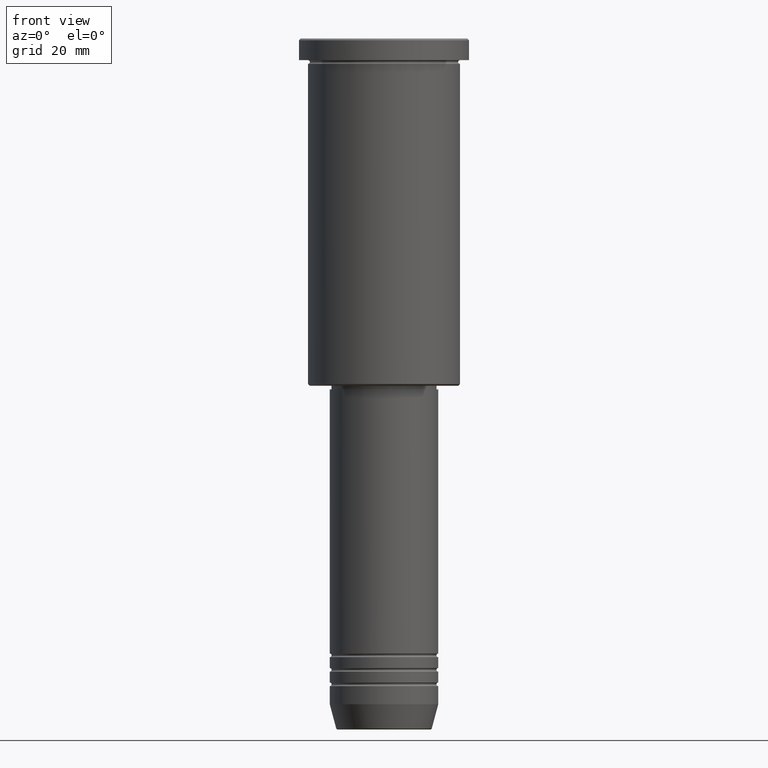
[diagram: clean part render]
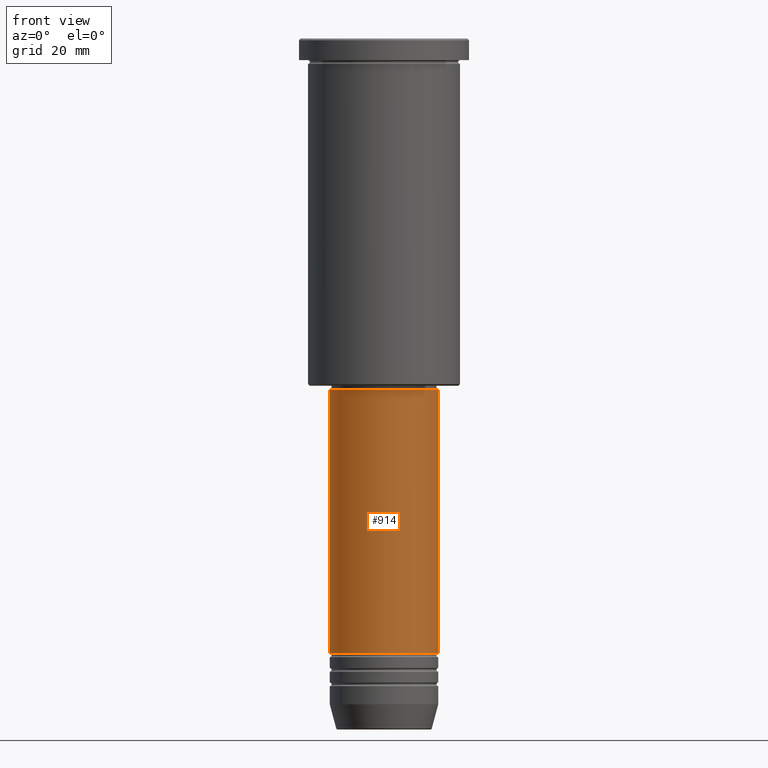
[diagram: same view with one face highlighted and labeled with its STEP entity id]
A machine part, front view. The second image highlights one B-rep face of the part: STEP entity #914.
In plain terms, the highlighted cylindrical surface (partial cylindrical patch) has radius 15 mm, axis along (-0, -0, 1).
Its self-contained STEP definition (entity closure, byte-faithful):
#17 = CARTESIAN_POINT ( 'NONE',  ( 0.000000000000000000, 0.000000000000000000, 0.000000000000000000 ) ) ;
#89 = EDGE_CURVE ( 'NONE', #983, #584, #444, .T. ) ;
#114 = VERTEX_POINT ( 'NONE', #992 ) ;
#117 = CARTESIAN_POINT ( 'NONE',  ( 15.00000000000000000, 0.000000000000000000, -169.9999999999999147 ) ) ;
#126 = AXIS2_PLACEMENT_3D ( 'NONE', #17, #841, #1119 ) ;
#155 = CARTESIAN_POINT ( 'NONE',  ( 15.00000000000000000, 0.000000000000000000, 0.000000000000000000 ) ) ;
#185 = DIRECTION ( 'NONE',  ( 1.000000000000000000, 0.000000000000000000, 0.000000000000000000 ) ) ;
#204 = VECTOR ( 'NONE', #759, 1000.000000000000000 ) ;
#279 = AXIS2_PLACEMENT_3D ( 'NONE', #768, #1133, #324 ) ;
#324 = DIRECTION ( 'NONE',  ( 1.000000000000000000, 0.000000000000000000, 0.000000000000000000 ) ) ;
#345 = EDGE_CURVE ( 'NONE', #983, #480, #1014, .T. ) ;
#357 = CARTESIAN_POINT ( 'NONE',  ( -15.00000000000000000, 1.836970198721029589E-15, -169.9999999999999147 ) ) ;
#389 = CIRCLE ( 'NONE', #633, 15.00000000000000000 ) ;
#444 = LINE ( 'NONE', #703, #671 ) ;
#480 = VERTEX_POINT ( 'NONE', #117 ) ;
#508 = CYLINDRICAL_SURFACE ( 'NONE', #126, 15.00000000000000000 ) ;
#584 = VERTEX_POINT ( 'NONE', #1058 ) ;
#589 = EDGE_LOOP ( 'NONE', ( #969, #1021, #865, #772 ) ) ;
#633 = AXIS2_PLACEMENT_3D ( 'NONE', #717, #906, #185 ) ;
#671 = VECTOR ( 'NONE', #987, 1000.000000000000000 ) ;
#703 = CARTESIAN_POINT ( 'NONE',  ( -15.00000000000000000, 1.836970198721029589E-15, 0.000000000000000000 ) ) ;
#717 = CARTESIAN_POINT ( 'NONE',  ( 0.000000000000000000, 0.000000000000000000, -97.00000000000002842 ) ) ;
#754 = FACE_OUTER_BOUND ( 'NONE', #589, .T. ) ;
#759 = DIRECTION ( 'NONE',  ( -0.000000000000000000, -0.000000000000000000, 1.000000000000000000 ) ) ;
#768 = CARTESIAN_POINT ( 'NONE',  ( 0.000000000000000000, 0.000000000000000000, -169.9999999999999147 ) ) ;
#772 = ORIENTED_EDGE ( 'NONE', *, *, #1042, .F. ) ;
#841 = DIRECTION ( 'NONE',  ( -0.000000000000000000, -0.000000000000000000, 1.000000000000000000 ) ) ;
#865 = ORIENTED_EDGE ( 'NONE', *, *, #887, .T. ) ;
#887 = EDGE_CURVE ( 'NONE', #480, #114, #928, .T. ) ;
#906 = DIRECTION ( 'NONE',  ( -0.000000000000000000, -0.000000000000000000, 1.000000000000000000 ) ) ;
#914 = ADVANCED_FACE ( 'NONE', ( #754 ), #508, .T. ) ;
#928 = LINE ( 'NONE', #155, #204 ) ;
#969 = ORIENTED_EDGE ( 'NONE', *, *, #89, .F. ) ;
#983 = VERTEX_POINT ( 'NONE', #357 ) ;
#987 = DIRECTION ( 'NONE',  ( -0.000000000000000000, -0.000000000000000000, 1.000000000000000000 ) ) ;
#992 = CARTESIAN_POINT ( 'NONE',  ( 15.00000000000000000, 0.000000000000000000, -97.00000000000002842 ) ) ;
#1014 = CIRCLE ( 'NONE', #279, 15.00000000000000000 ) ;
#1021 = ORIENTED_EDGE ( 'NONE', *, *, #345, .T. ) ;
#1042 = EDGE_CURVE ( 'NONE', #584, #114, #389, .T. ) ;
#1058 = CARTESIAN_POINT ( 'NONE',  ( -15.00000000000000000, 1.836970198721029589E-15, -97.00000000000002842 ) ) ;
#1119 = DIRECTION ( 'NONE',  ( 1.000000000000000000, 0.000000000000000000, 0.000000000000000000 ) ) ;
#1133 = DIRECTION ( 'NONE',  ( -0.000000000000000000, -0.000000000000000000, 1.000000000000000000 ) ) ;